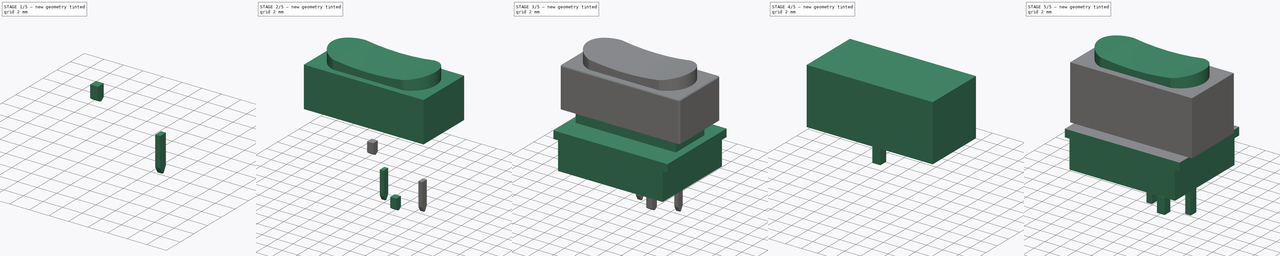
[diagram: build sequence overview — one tinted view per stage of 5, left to right]
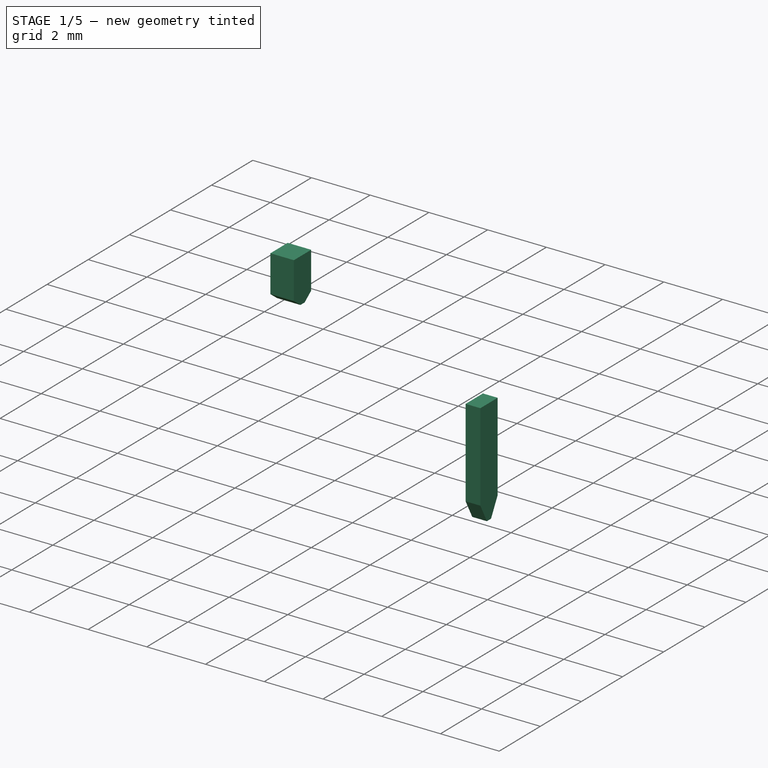
[diagram: stage 1 of 5 — iso view after this stage's code; geometry added in this stage tinted green]
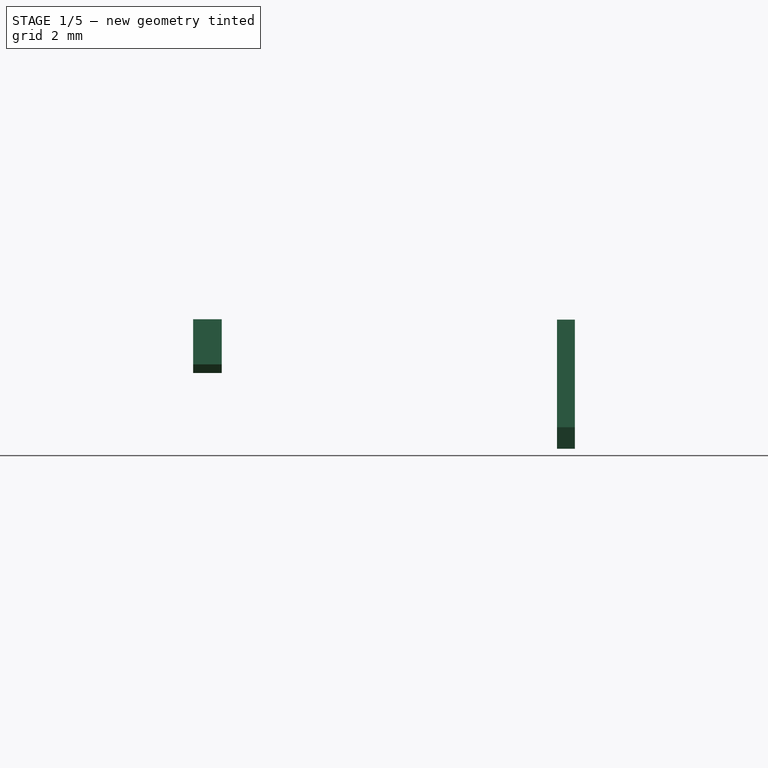
[diagram: stage 1 of 5 — front view after this stage's code; geometry added in this stage tinted green]
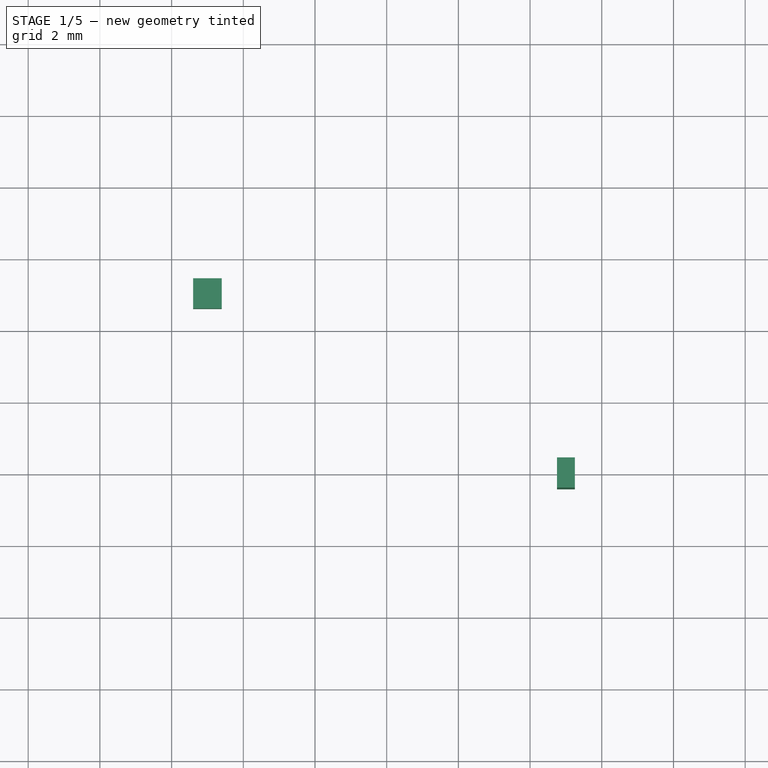
[diagram: stage 1 of 5 — top view after this stage's code; geometry added in this stage tinted green]
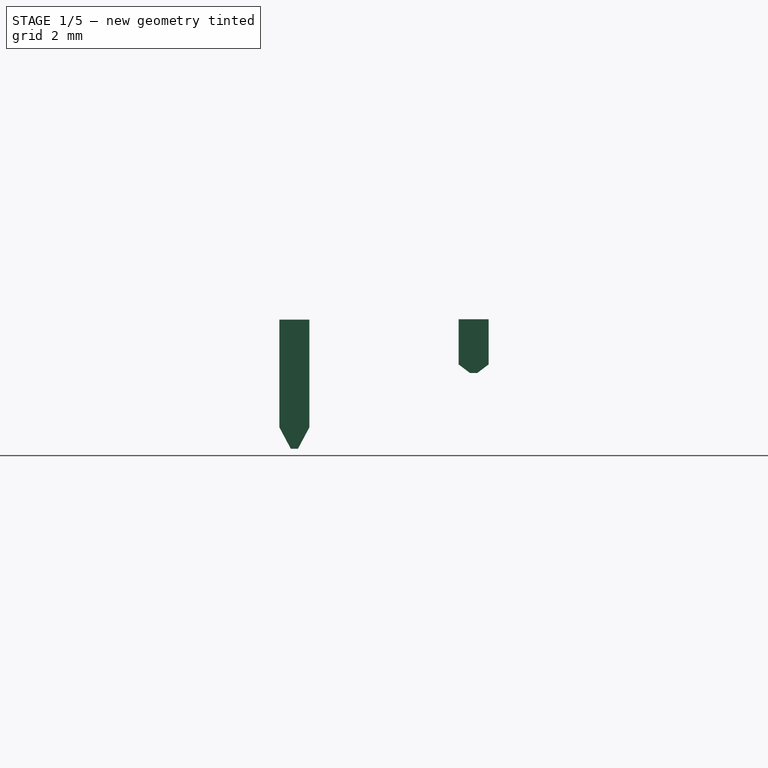
[diagram: stage 1 of 5 — right view after this stage's code; geometry added in this stage tinted green]
FCSTD DOCUMENT  (FreeCAD 0.17R13247 (Git))
Label: marquardt_6450
License: All rights reserved
LicenseURL: http://en.wikipedia.org/wiki/All_rights_reserved
objects: Sketcher::SketchObject×10, Part::Extrusion×7, Part::FeaturePython×4, Part::Compound×4, PartDesign::Pad×2, Part::MultiFuse×2, PartDesign::Pocket×1, Part::Fillet×1, Spreadsheet::Sheet×1
note: 34 computed .brp shape members not serialized (recipe doc carries the construction recipe); baked Part::Feature solids carry a one-line shape summary decoded from their .brp

FEATURE [Sketcher::SketchObject] Sketch007
  MapMode = 5
  Placement = pos=(0,0,0) rot=(0.57735,0.57735,0.57735;2.0944rad)
  sketch-geometry (6):
    g0: LineSegment StartX=-0.42 StartY=0 StartZ=0 EndX=0.42 EndY=0 EndZ=0
    g1: LineSegment StartX=0.42 StartY=0 StartZ=0 EndX=0.42 EndY=-3 EndZ=0
    g2: LineSegment StartX=0.42 StartY=-3 StartZ=0 EndX=0.1 EndY=-3.6 EndZ=0
    g3: LineSegment StartX=0.1 StartY=-3.6 StartZ=0 EndX=-0.1 EndY=-3.6 EndZ=0
    g4: LineSegment StartX=-0.1 StartY=-3.6 StartZ=0 EndX=-0.42 EndY=-3 EndZ=0
    g5: LineSegment StartX=-0.42 StartY=-3 StartZ=0 EndX=-0.42 EndY=0 EndZ=0
  constraints (18):
    c: PointOnObject(g0,g-1)
    c: PointOnObject(g0,g-1)
    c: Coincident(g0,g1)
    c: Vertical(g1)
    c: Coincident(g1,g2)
    c: Coincident(g2,g3)
    c: Horizontal(g3)
    c: Coincident(g3,g4)
    c: Coincident(g4,g5)
    c: Coincident(g5,g0)
    c: Vertical(g5)
    c: Symmetric(g0,g0,g-2)
    c: Symmetric(g2,g3,g-2)
    c: Equal(g1,g5)
    c: DistanceX(g3,g3) = 0.2
    c: DistanceX(g0,g0) = 0.84
    c: DistanceY(g1,g0) = 3
    c: DistanceY(g2,g1) = 0.6
FEATURE [Part::Extrusion] Extrude003  label="pin1"
  Base = -> Sketch007
  Dir = (0.5,0,0)
  DirMode = 0
  FaceMakerClass = Part::FaceMakerExtrusion
  LengthFwd = 0
  LengthRev = 0
  Placement = pos=(-0.25,0,-6.35) rot=(0,0,1;0rad)
  Solid = true
  Symmetric = false
FEATURE [Part::FeaturePython] Clone  label="Clone of pin1"  # Draft clone (typed FeaturePython)
  Objects = -> [Extrude003]
  Placement = pos=(4.75,0,-6.35) rot=(0,0,1;0rad)
  Scale = (1,1,1)
FEATURE [Sketcher::SketchObject] Sketch008  label="littlePin"
  MapMode = 5
  Placement = pos=(5,-5,-6.33908) rot=(0.57735,0.57735,0.57735;2.0944rad)
  sketch-geometry (6):
    g0: LineSegment StartX=-0.42 StartY=0 StartZ=0 EndX=0.42 EndY=0 EndZ=0
    g1: LineSegment StartX=0.42 StartY=0 StartZ=0 EndX=0.42 EndY=-1.25815 EndZ=0
    g2: LineSegment StartX=0.42 StartY=-1.25815 StartZ=0 EndX=0.1 EndY=-1.5 EndZ=0
    g3: LineSegment StartX=0.1 StartY=-1.5 StartZ=0 EndX=-0.1 EndY=-1.5 EndZ=0
    g4: LineSegment StartX=-0.1 StartY=-1.5 StartZ=0 EndX=-0.42 EndY=-1.25815 EndZ=0
    g5: LineSegment StartX=-0.42 StartY=-1.25815 StartZ=0 EndX=-0.42 EndY=0 EndZ=0
  constraints (17):
    c: PointOnObject(g0,g-1)
    c: PointOnObject(g0,g-1)
    c: Coincident(g0,g1)
    c: Vertical(g1)
    c: Coincident(g1,g2)
    c: Coincident(g2,g3)
    c: Horizontal(g3)
    c: Coincident(g3,g4)
    c: Coincident(g4,g5)
    c: Coincident(g5,g0)
    c: Vertical(g5)
    c: Symmetric(g0,g0,g-2)
    c: Symmetric(g2,g3,g-2)
    c: Equal(g1,g5)
    c: DistanceX(g3,g3) = 0.2
    c: DistanceX(g0,g0) = 0.84
    c: DistanceY(g3,g0) = 1.5
FEATURE [PartDesign::Pad] Pad002  label="PlasticPin"
  Length = 0.8
  Length2 = 100
  Midplane = true
  Placement = pos=(5,-5,-6.33908) rot=(0.57735,0.57735,0.57735;2.0944rad)
  Profile = -> Sketch008
  Type = 0
FEATURE [Part::FeaturePython] Clone001  label="Clone of PlasticPin"  # Draft clone (typed FeaturePython)
  Objects = -> [Pad002]
  Placement = pos=(-5,5,-6.33908) rot=(0.57735,0.57735,0.57735;2.0944rad)
  Scale = (1,1,1)
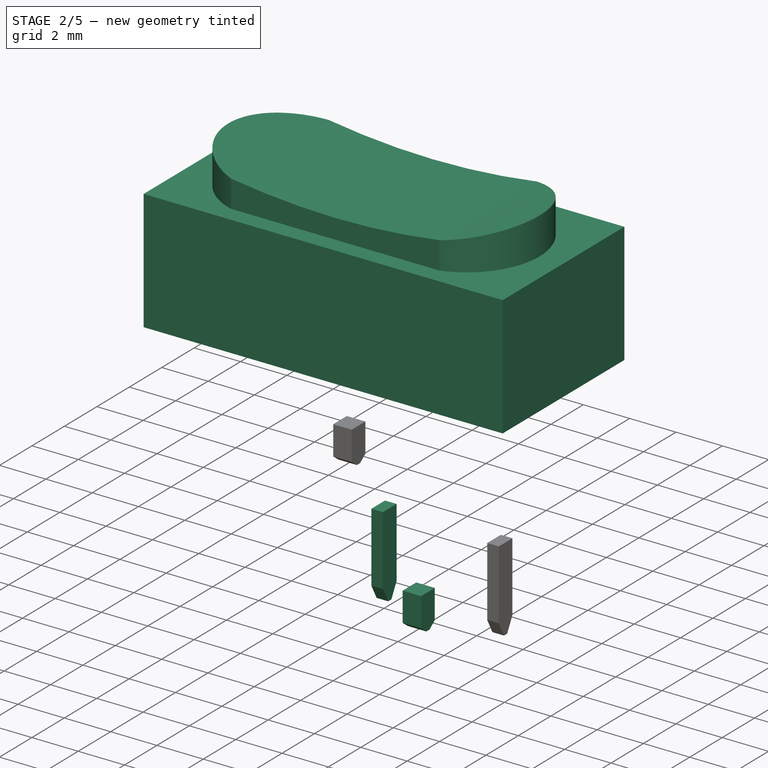
[diagram: stage 2 of 5 — iso view after this stage's code; geometry added in this stage tinted green]
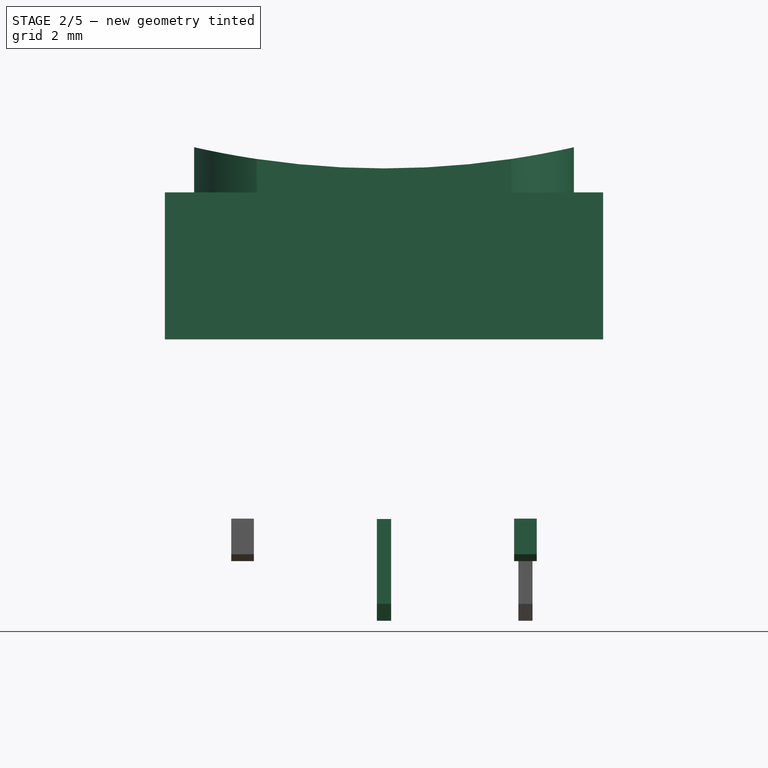
[diagram: stage 2 of 5 — front view after this stage's code; geometry added in this stage tinted green]
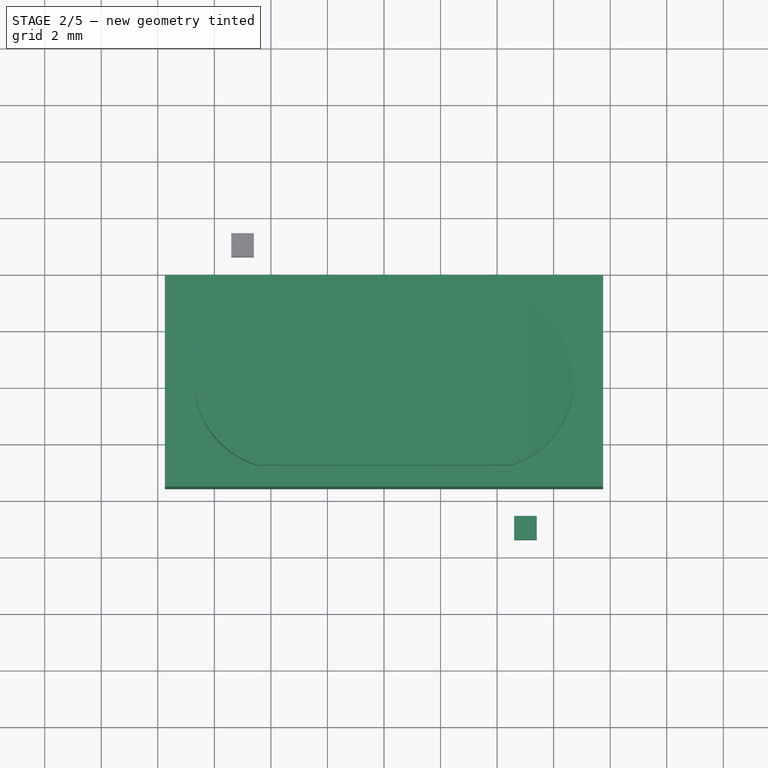
[diagram: stage 2 of 5 — top view after this stage's code; geometry added in this stage tinted green]
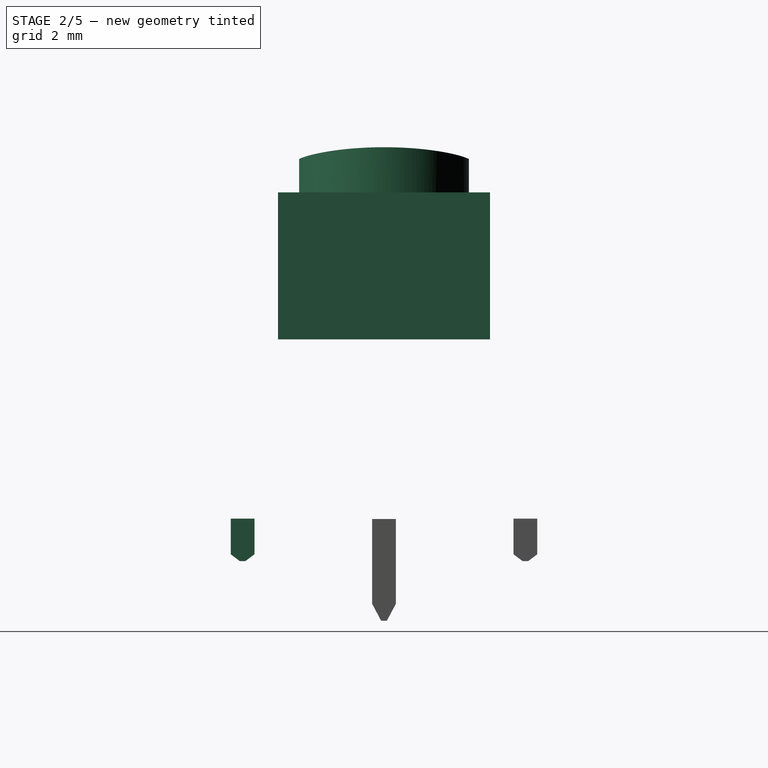
[diagram: stage 2 of 5 — right view after this stage's code; geometry added in this stage tinted green]
FEATURE [Sketcher::SketchObject] Sketch
  MapMode = 5
  sketch-geometry (4):
    g0: LineSegment StartX=-7.75 StartY=3.75 StartZ=0 EndX=7.75 EndY=3.75 EndZ=0
    g1: LineSegment StartX=7.75 StartY=3.75 StartZ=0 EndX=7.75 EndY=-3.75 EndZ=0
    g2: LineSegment StartX=7.75 StartY=-3.75 StartZ=0 EndX=-7.75 EndY=-3.75 EndZ=0
    g3: LineSegment StartX=-7.75 StartY=-3.75 StartZ=0 EndX=-7.75 EndY=3.75 EndZ=0
  constraints (12):
    c: Coincident(g0,g1)
    c: Coincident(g1,g2)
    c: Coincident(g2,g3)
    c: Coincident(g3,g0)
    c: Horizontal(g0)
    c: Horizontal(g2)
    c: Vertical(g1)
    c: Vertical(g3)
    c: DistanceY(g3,g3) = 7.5
    c: DistanceX(g0,g0) = 15.5
    c: Symmetric(g0,g0,g-2)
    c: Symmetric(g1,g0,g-1)
FEATURE [PartDesign::Pad] Pad
  Length = 5.2
  Length2 = 100
  Profile = -> Sketch
  Type = 0
FEATURE [Sketcher::SketchObject] Sketch003
  MapMode = 5
  Placement = pos=(0,-3,0) rot=(1,0,0;1.5708rad)
  sketch-geometry (4):
    g0: ArcOfCircle CenterX=0 CenterY=36.5027 CenterZ=0 NormalX=0 NormalY=0 NormalZ=1 AngleXU=0 Radius=30.4549 StartAngle=4.48968 EndAngle=4.9351
    g1: LineSegment StartX=4.5 StartY=6.8 StartZ=0 EndX=6.7267 EndY=6.8 EndZ=0
    g2: LineSegment StartX=-4.5 StartY=6.8 StartZ=0 EndX=-6.7267 EndY=6.8 EndZ=0
    g3: LineSegment StartX=-4.5 StartY=6.8 StartZ=0 EndX=4.5 EndY=6.8 EndZ=0
  constraints (8):
    c: PointOnObject(g0,g-2)
    c: Symmetric(g0,g0,g-2)
    c: Horizontal(g1)
    c: Horizontal(g2)
    c: Coincident(g0,g2)
    c: Coincident(g1,g0)
    c: Coincident(g3,g2)
    c: Coincident(g3,g1)
FEATURE [PartDesign::Pocket] Pocket
  Length = 5
  Length2 = 100
  Profile = -> Sketch003
  Type = 1
FEATURE [Part::MultiFuse] Fusion  label="Cap_"
  Shapes = -> [Pocket,Pad]
FEATURE [Part::Compound] Compound  label="Pins"
  Links = -> [Clone,Extrude003,Pad002,Clone001]
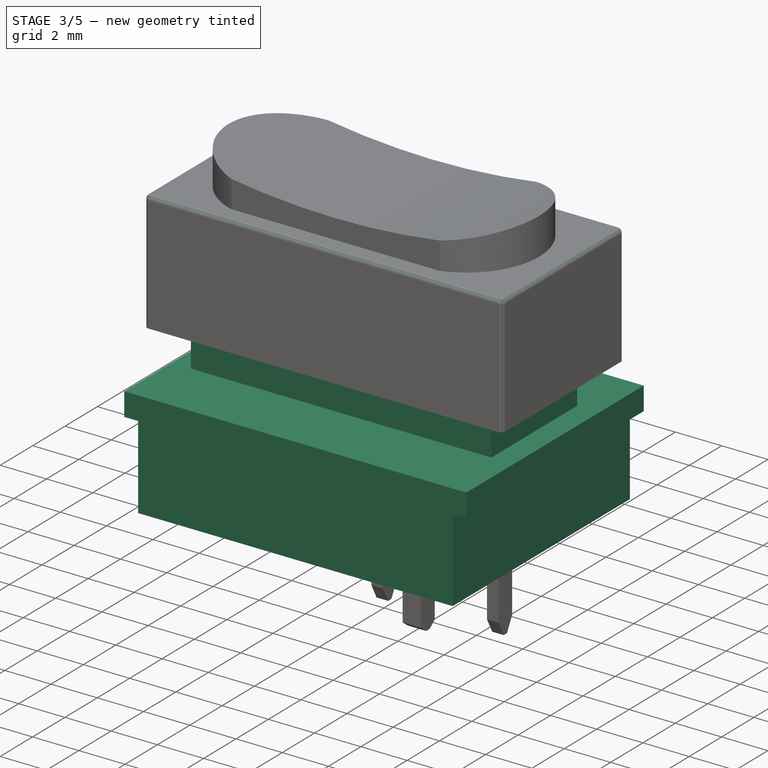
[diagram: stage 3 of 5 — iso view after this stage's code; geometry added in this stage tinted green]
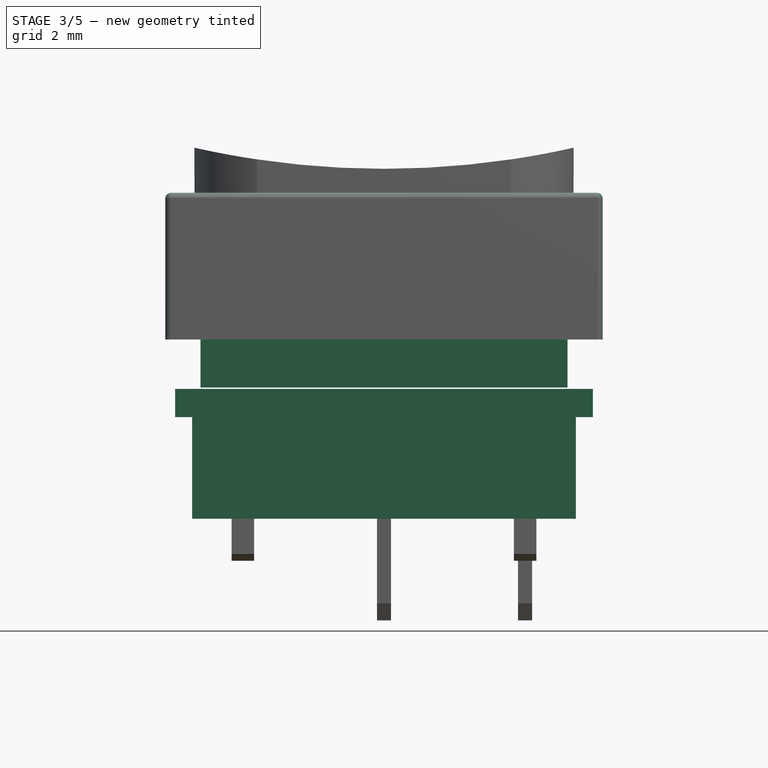
[diagram: stage 3 of 5 — front view after this stage's code; geometry added in this stage tinted green]
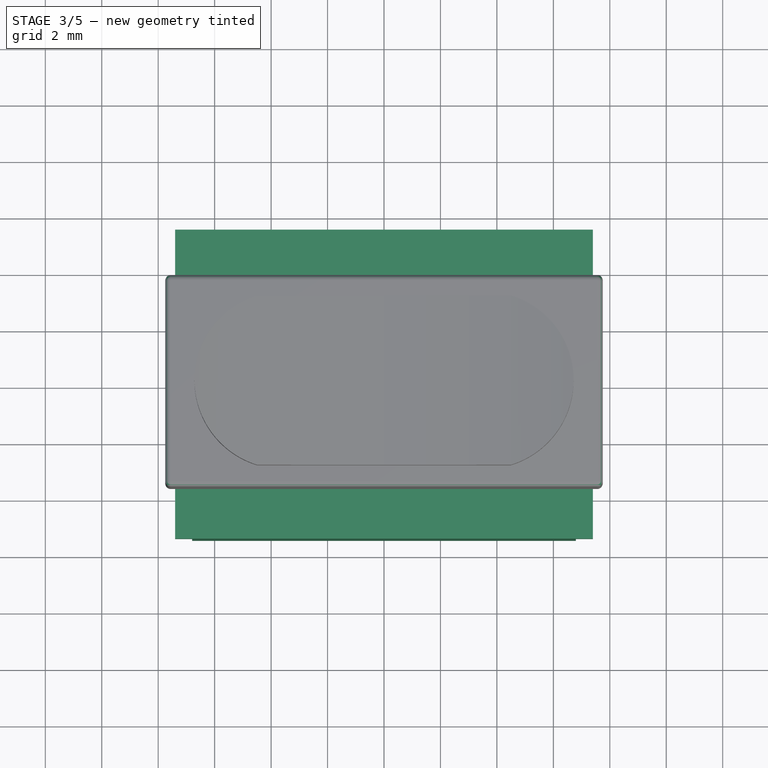
[diagram: stage 3 of 5 — top view after this stage's code; geometry added in this stage tinted green]
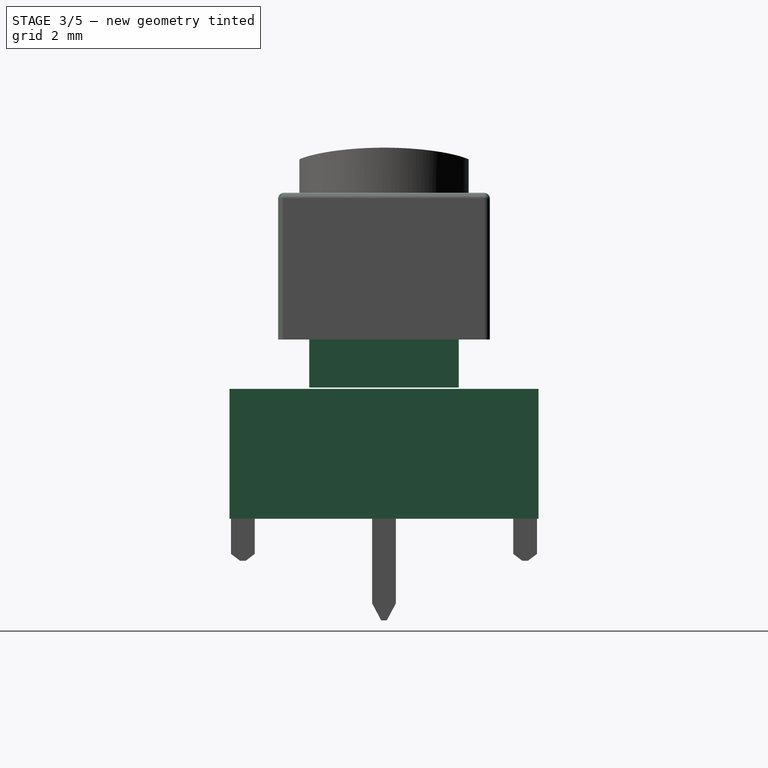
[diagram: stage 3 of 5 — right view after this stage's code; geometry added in this stage tinted green]
FEATURE [Sketcher::SketchObject] Sketch004
  MapMode = 5
  sketch-geometry (4):
    g0: LineSegment StartX=-6.8 StartY=5.475 StartZ=0 EndX=6.8 EndY=5.475 EndZ=0
    g1: LineSegment StartX=6.8 StartY=5.475 StartZ=0 EndX=6.8 EndY=-5.475 EndZ=0
    g2: LineSegment StartX=6.8 StartY=-5.475 StartZ=0 EndX=-6.8 EndY=-5.475 EndZ=0
    g3: LineSegment StartX=-6.8 StartY=-5.475 StartZ=0 EndX=-6.8 EndY=5.475 EndZ=0
  constraints (12):
    c: Coincident(g0,g1)
    c: Coincident(g1,g2)
    c: Coincident(g2,g3)
    c: Coincident(g3,g0)
    c: Horizontal(g0)
    c: Horizontal(g2)
    c: Vertical(g1)
    c: Vertical(g3)
    c: DistanceX(g0,g0) = 13.6
    c: DistanceY(g1,g1) = 10.95
    c: Symmetric(g1,g0,g-1)
    c: Symmetric(g0,g0,g-2)
FEATURE [Part::Extrusion] Extrude
  Base = -> Sketch004
  Dir = (0,0,-3.6)
  DirMode = 0
  FaceMakerClass = Part::FaceMakerExtrusion
  LengthFwd = 0
  LengthRev = 0
  Placement = pos=(0,0,-2.75) rot=(0,0,1;0rad)
  Solid = true
  Symmetric = false
FEATURE [Sketcher::SketchObject] Sketch005
  MapMode = 5
  sketch-geometry (4):
    g0: LineSegment StartX=-7.4 StartY=5.475 StartZ=0 EndX=7.4 EndY=5.475 EndZ=0
    g1: LineSegment StartX=7.4 StartY=5.475 StartZ=0 EndX=7.4 EndY=-5.475 EndZ=0
    g2: LineSegment StartX=7.4 StartY=-5.475 StartZ=0 EndX=-7.4 EndY=-5.475 EndZ=0
    g3: LineSegment StartX=-7.4 StartY=-5.475 StartZ=0 EndX=-7.4 EndY=5.475 EndZ=0
  constraints (12):
    c: Coincident(g0,g1)
    c: Coincident(g1,g2)
    c: Coincident(g2,g3)
    c: Coincident(g3,g0)
    c: Horizontal(g0)
    c: Horizontal(g2)
    c: Vertical(g1)
    c: Vertical(g3)
    c: DistanceX(g0,g0) = 14.8
    c: DistanceY(g1,g1) = 10.95
    c: Symmetric(g1,g0,g-1)
    c: Symmetric(g0,g0,g-2)
FEATURE [Part::Extrusion] Extrude001
  Base = -> Sketch005
  Dir = (0,0,-1)
  DirMode = 0
  FaceMakerClass = Part::FaceMakerExtrusion
  LengthFwd = 0
  LengthRev = 0
  Placement = pos=(0,0,-1.75) rot=(0,0,1;0rad)
  Solid = true
  Symmetric = false
FEATURE [Part::MultiFuse] Fusion001  label="Base"
  Shapes = -> [Extrude001,Extrude]
FEATURE [Sketcher::SketchObject] Sketch006
  MapMode = 5
  Placement = pos=(0,0,0) rot=(1,0,0;3.14159rad)
  Support = -> [Fusion]
  sketch-geometry (4):
    g0: LineSegment StartX=-6.5 StartY=2.65 StartZ=0 EndX=6.5 EndY=2.65 EndZ=0
    g1: LineSegment StartX=6.5 StartY=2.65 StartZ=0 EndX=6.5 EndY=-2.65 EndZ=0
    g2: LineSegment StartX=6.5 StartY=-2.65 StartZ=0 EndX=-6.5 EndY=-2.65 EndZ=0
    g3: LineSegment StartX=-6.5 StartY=-2.65 StartZ=0 EndX=-6.5 EndY=2.65 EndZ=0
  constraints (12):
    c: Coincident(g0,g1)
    c: Coincident(g1,g2)
    c: Coincident(g2,g3)
    c: Coincident(g3,g0)
    c: Horizontal(g0)
    c: Horizontal(g2)
    c: Vertical(g1)
    c: Vertical(g3)
    c: Symmetric(g1,g0,g-1)
    c: Symmetric(g0,g0,g-2)
    c: DistanceX(g0,g0) = 13
    c: DistanceY(g1,g1) = 5.3
FEATURE [Part::Extrusion] Extrude002  label="Neck"
  Base = -> Sketch006
  Dir = (0,0,-1.7)
  DirMode = 0
  FaceMakerClass = Part::FaceMakerExtrusion
  LengthFwd = 0
  LengthRev = 0
  Solid = true
  Symmetric = false
FEATURE [Part::Fillet] Fillet  label="Cap"
  Base = -> Fusion
  Edges = 8 edges r=0.2: [Edge15,Edge16,Edge17,Edge18,Edge19,Edge21,Edge22,Edge25]
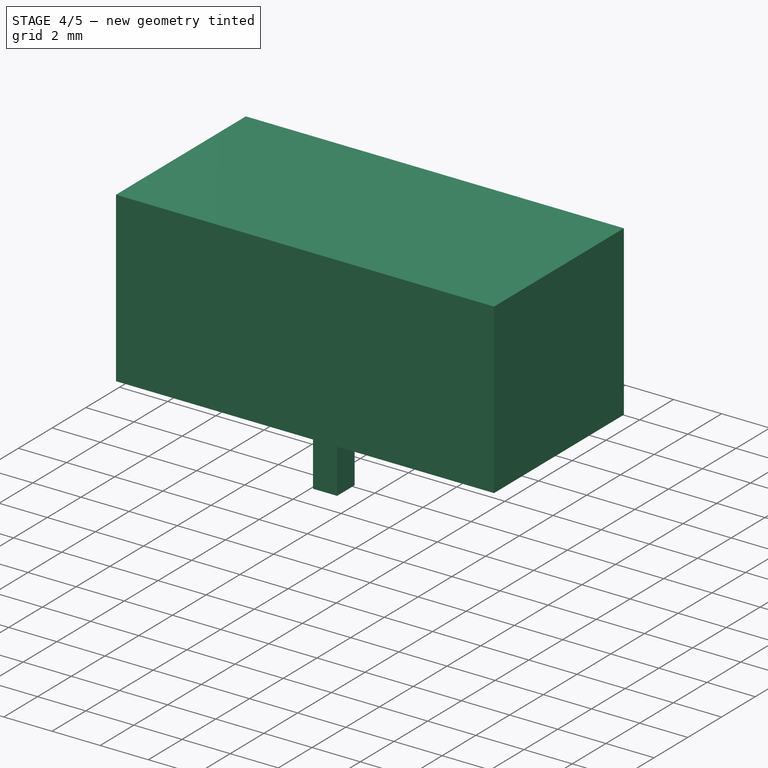
[diagram: stage 4 of 5 — iso view after this stage's code; geometry added in this stage tinted green]
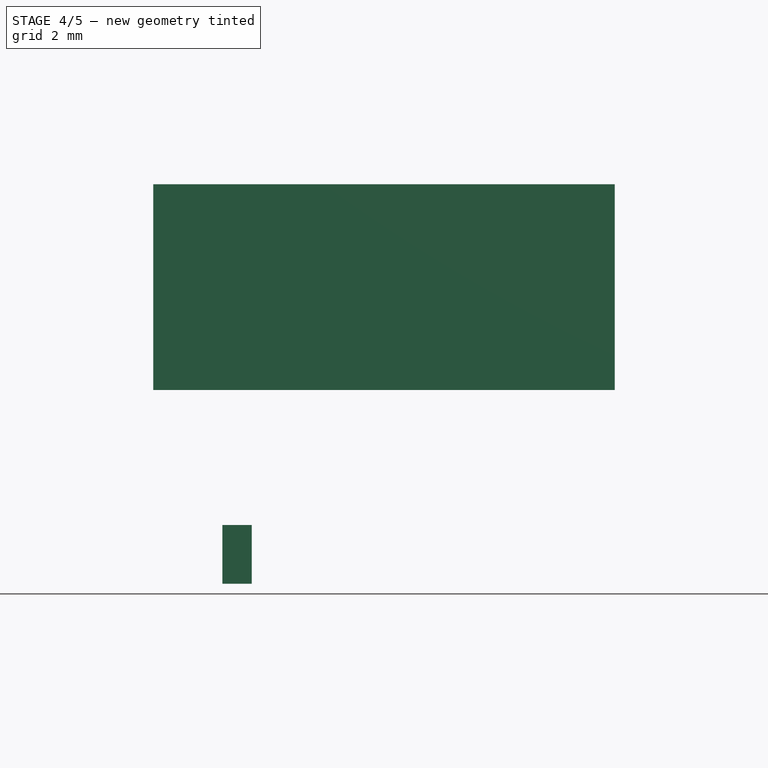
[diagram: stage 4 of 5 — front view after this stage's code; geometry added in this stage tinted green]
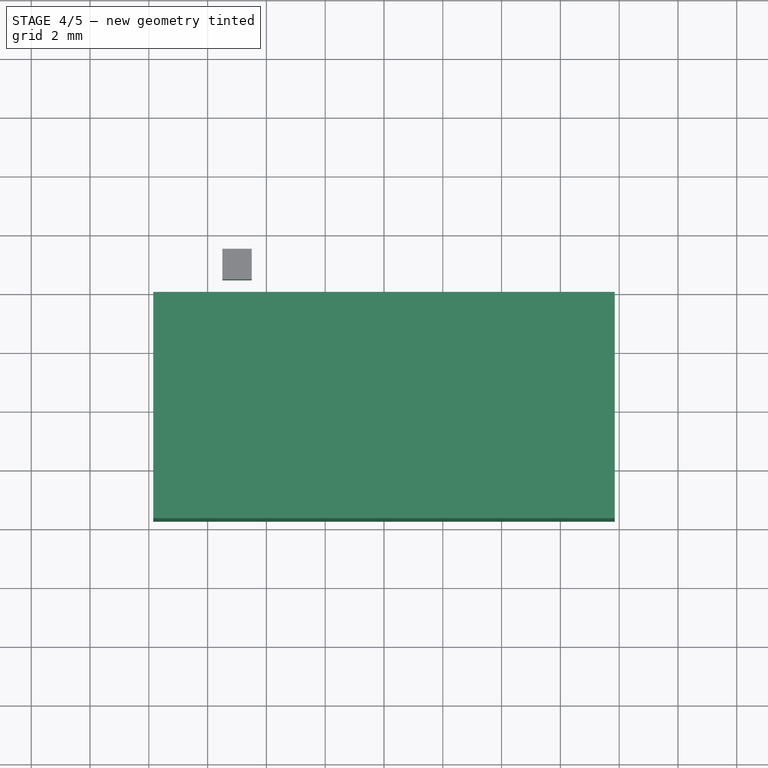
[diagram: stage 4 of 5 — top view after this stage's code; geometry added in this stage tinted green]
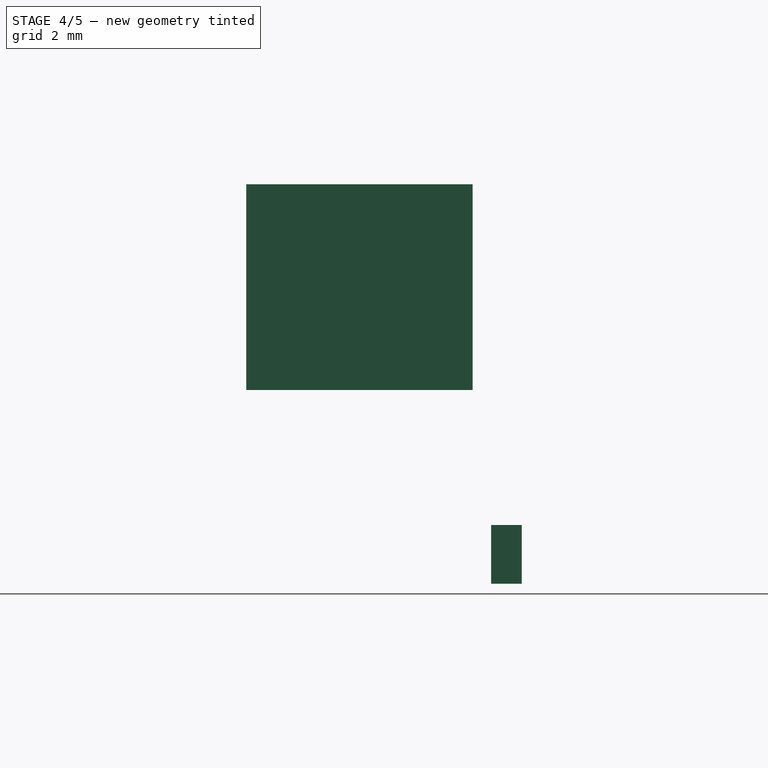
[diagram: stage 4 of 5 — right view after this stage's code; geometry added in this stage tinted green]
FEATURE [Part::Compound] Compound001  label="_marquardt_6450"
  Links = -> [Compound,Fusion001,Extrude002,Fillet]
FEATURE [Sketcher::SketchObject] Sketch010
  ExternalGeometry = -> [Compound]
  MapMode = 5
  Placement = pos=(0,0,-6.33908) rot=(0,0,1;0rad)
  Support = -> [Compound]
  expr: Constraints[11] = Spreadsheet.PcbTolerance
  expr: Constraints[10] = Spreadsheet.PcbTolerance
  expr: Constraints[9] = Spreadsheet.PcbTolerance
  expr: Constraints[8] = Spreadsheet.PcbTolerance
  sketch-geometry (4):
    g0: LineSegment StartX=4.5 StartY=-4.48 StartZ=0 EndX=5.5 EndY=-4.48 EndZ=0
    g1: LineSegment StartX=5.5 StartY=-4.48 StartZ=0 EndX=5.5 EndY=-5.52 EndZ=0
    g2: LineSegment StartX=5.5 StartY=-5.52 StartZ=0 EndX=4.5 EndY=-5.52 EndZ=0
    g3: LineSegment StartX=4.5 StartY=-5.52 StartZ=0 EndX=4.5 EndY=-4.48 EndZ=0
  constraints (12):
    c: Coincident(g0,g1)
    c: Coincident(g1,g2)
    c: Coincident(g2,g3)
    c: Coincident(g3,g0)
    c: Horizontal(g0)
    c: Horizontal(g2)
    c: Vertical(g1)
    c: Vertical(g3)
    c: DistanceX(g-3,g1) = 0.1
    c: DistanceX(g0,g-4) = 0.1
    c: DistanceY(g-4,g0) = 0.1
    c: DistanceY(g2,g-3) = 0.1
FEATURE [Part::Extrusion] Extrude005  label="PlasticPinPcbHole"
  Base = -> Sketch010
  Dir = (0,0,-2)
  DirMode = 0
  FaceMakerClass = Part::FaceMakerExtrusion
  LengthFwd = 0
  LengthRev = 0
  Solid = true
  Symmetric = false
FEATURE [Part::FeaturePython] Clone003  label="Clone of PlasticPinPcbHole"  # Draft clone (typed FeaturePython)
  Objects = -> [Extrude005]
  Placement = pos=(-10,10,0) rot=(0,0,1;0rad)
  Scale = (1,1,1)
FEATURE [Sketcher::SketchObject] Sketch011
  ExternalGeometry = -> [Compound001]
  MapMode = 5
  Placement = pos=(0,0,-1.75) rot=(0,0,1;0rad)
  Support = -> [Compound001]
  expr: Constraints[11] = Spreadsheet.FPTolerance
  expr: Constraints[10] = Spreadsheet.FPTolerance
  expr: Constraints[9] = Spreadsheet.FPTolerance
  expr: Constraints[8] = Spreadsheet.FPTolerance
  sketch-geometry (4):
    g0: LineSegment StartX=-7.85 StartY=3.85 StartZ=0 EndX=7.85 EndY=3.85 EndZ=0
    g1: LineSegment StartX=7.85 StartY=3.85 StartZ=0 EndX=7.85 EndY=-3.85 EndZ=0
    g2: LineSegment StartX=7.85 StartY=-3.85 StartZ=0 EndX=-7.85 EndY=-3.85 EndZ=0
    g3: LineSegment StartX=-7.85 StartY=-3.85 StartZ=0 EndX=-7.85 EndY=3.85 EndZ=0
  constraints (12):
    c: Coincident(g0,g1)
    c: Coincident(g1,g2)
    c: Coincident(g2,g3)
    c: Coincident(g3,g0)
    c: Horizontal(g0)
    c: Horizontal(g2)
    c: Vertical(g1)
    c: Vertical(g3)
    c: DistanceX(g0,g-7) = 0.1
    c: DistanceY(g-7,g0) = 0.1
    c: DistanceY(g1,g-9) = 0.1
    c: DistanceX(g-9,g1) = 0.1
FEATURE [Part::Extrusion] Extrude006  label="Marquardt6450_FPHole"
  Base = -> Sketch011
  Dir = (0,0,7)
  DirMode = 0
  FaceMakerClass = Part::FaceMakerExtrusion
  LengthFwd = 0
  LengthRev = 0
  Solid = true
  Symmetric = false
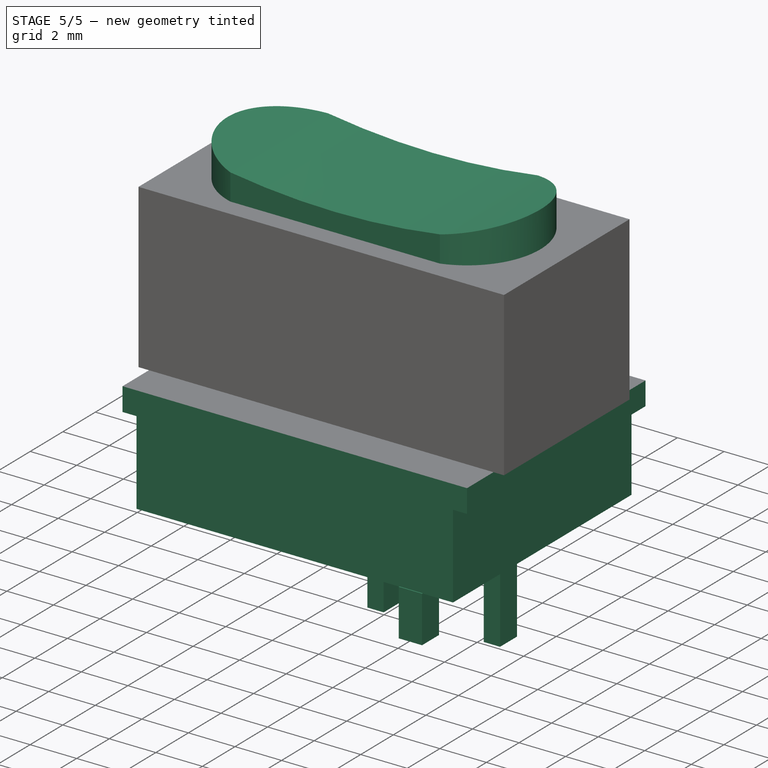
[diagram: stage 5 of 5 — iso view after this stage's code; geometry added in this stage tinted green]
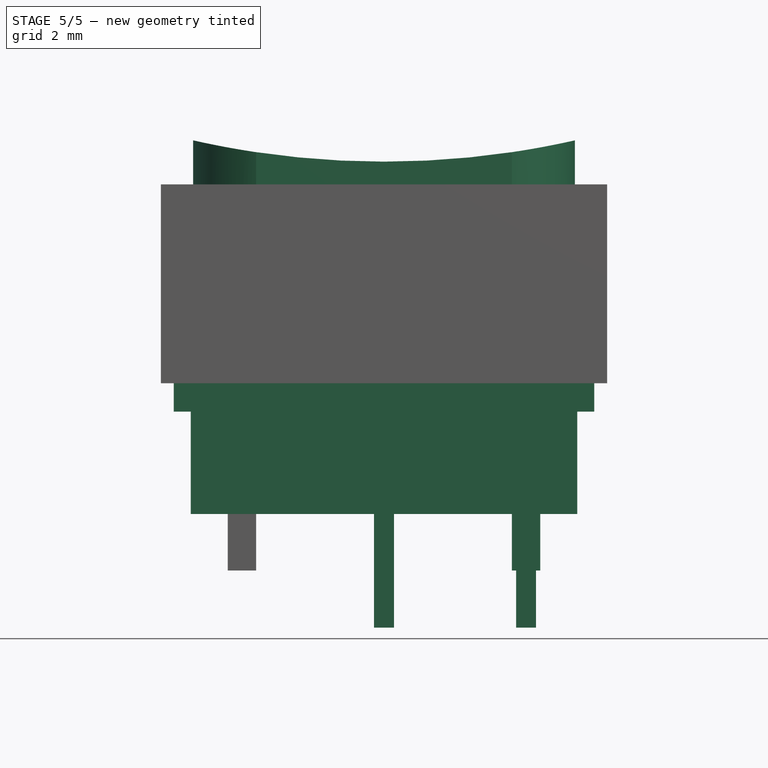
[diagram: stage 5 of 5 — front view after this stage's code; geometry added in this stage tinted green]
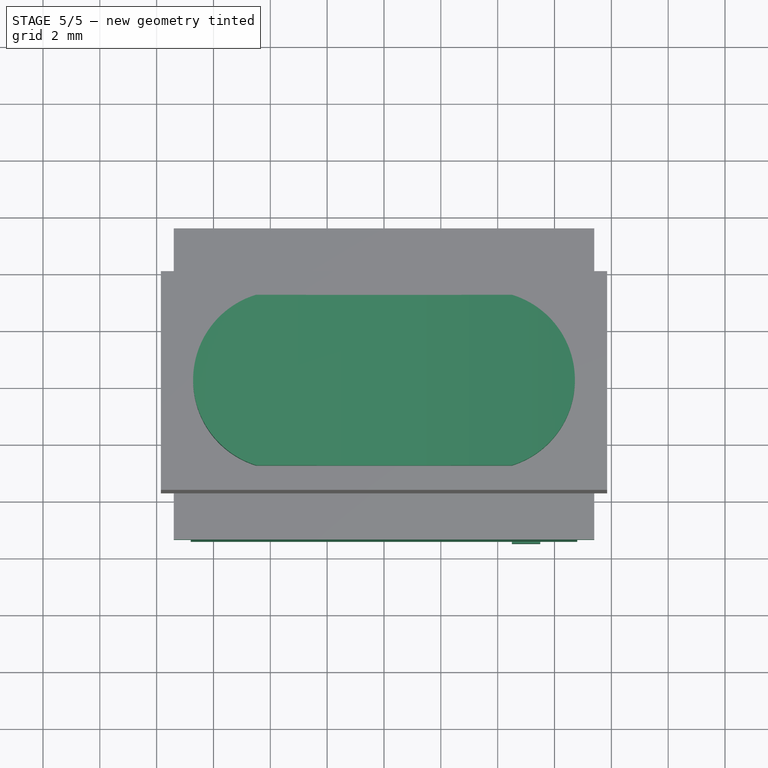
[diagram: stage 5 of 5 — top view after this stage's code; geometry added in this stage tinted green]
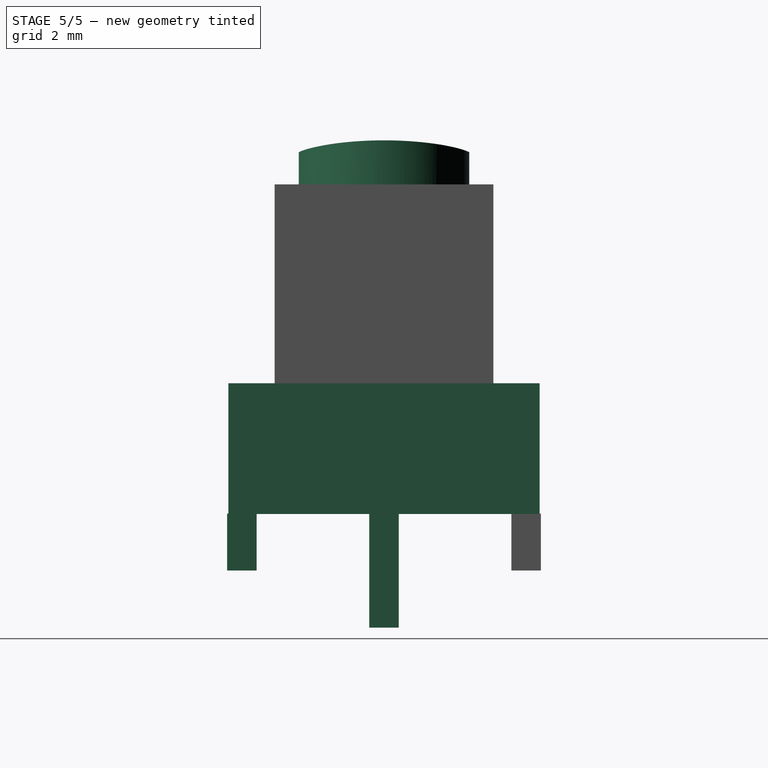
[diagram: stage 5 of 5 — right view after this stage's code; geometry added in this stage tinted green]
FEATURE [Sketcher::SketchObject] Sketch009
  ExternalGeometry = -> [Compound]
  MapMode = 5
  Placement = pos=(0,0,-6.35) rot=(0,0,1;0rad)
  Support = -> [Compound]
  expr: Constraints[11] = Spreadsheet.PcbTolerance
  expr: Constraints[10] = Spreadsheet.PcbTolerance
  expr: Constraints[9] = Spreadsheet.PcbTolerance
  expr: Constraints[8] = Spreadsheet.PcbTolerance
  sketch-geometry (4):
    g0: LineSegment StartX=-0.35 StartY=0.52 StartZ=0 EndX=0.35 EndY=0.52 EndZ=0
    g1: LineSegment StartX=0.35 StartY=0.52 StartZ=0 EndX=0.35 EndY=-0.52 EndZ=0
    g2: LineSegment StartX=0.35 StartY=-0.52 StartZ=0 EndX=-0.35 EndY=-0.52 EndZ=0
    g3: LineSegment StartX=-0.35 StartY=-0.52 StartZ=0 EndX=-0.35 EndY=0.52 EndZ=0
  constraints (12):
    c: Coincident(g0,g1)
    c: Coincident(g1,g2)
    c: Coincident(g2,g3)
    c: Coincident(g3,g0)
    c: Horizontal(g0)
    c: Horizontal(g2)
    c: Vertical(g1)
    c: Vertical(g3)
    c: DistanceX(g-4,g0) = 0.1
    c: DistanceY(g-4,g0) = 0.1
    c: DistanceY(g2,g-3) = 0.1
    c: DistanceX(g2,g-3) = 0.1
FEATURE [Spreadsheet::Sheet] Spreadsheet
  cells = B3=PcbTolerance; C3(PcbTolerance)=0.10000000000000001; B4=FPTolerance; C4(FPTolerance)=0.10000000000000001
FEATURE [Part::Extrusion] Extrude004  label="PinPcbHole"
  Base = -> Sketch009
  Dir = (0,0,-4)
  DirMode = 0
  FaceMakerClass = Part::FaceMakerExtrusion
  LengthFwd = 0
  LengthRev = 0
  Solid = true
  Symmetric = false
FEATURE [Part::FeaturePython] Clone002  label="Clone of PinPcbHole"  # Draft clone (typed FeaturePython)
  Objects = -> [Extrude004]
  Placement = pos=(5,0,0) rot=(0,0,1;0rad)
  Scale = (1,1,1)
FEATURE [Part::Compound] Compound002  label="Marquardt5450_PcbHoles"
  Links = -> [Extrude004,Clone002,Extrude005,Clone003]
FEATURE [Part::Compound] Compound003  label="Marquardt_6450"
  Links = -> [Compound001,Compound002,Extrude006,Spreadsheet]
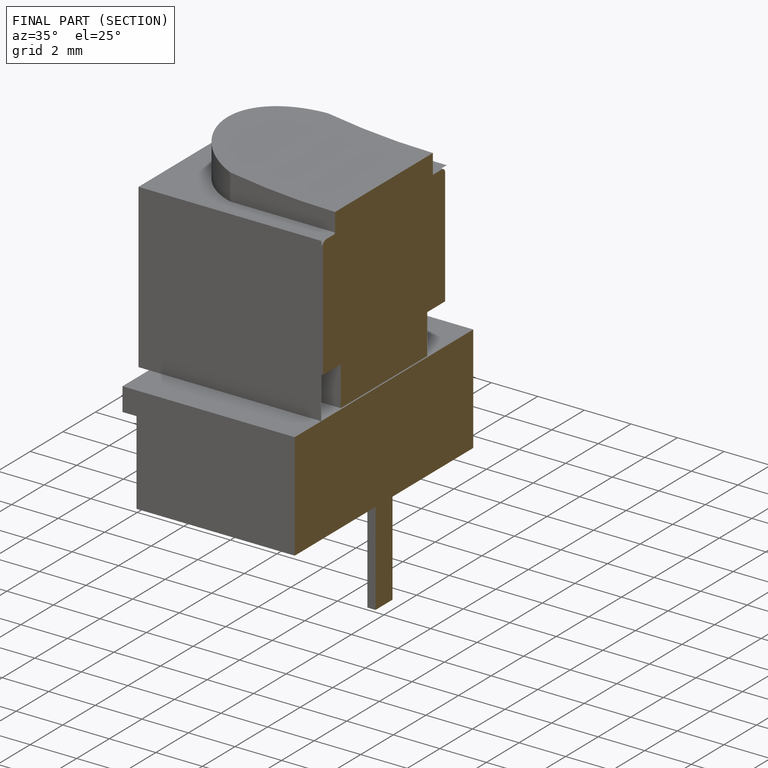
[diagram: finished part — half-section view (interior)]
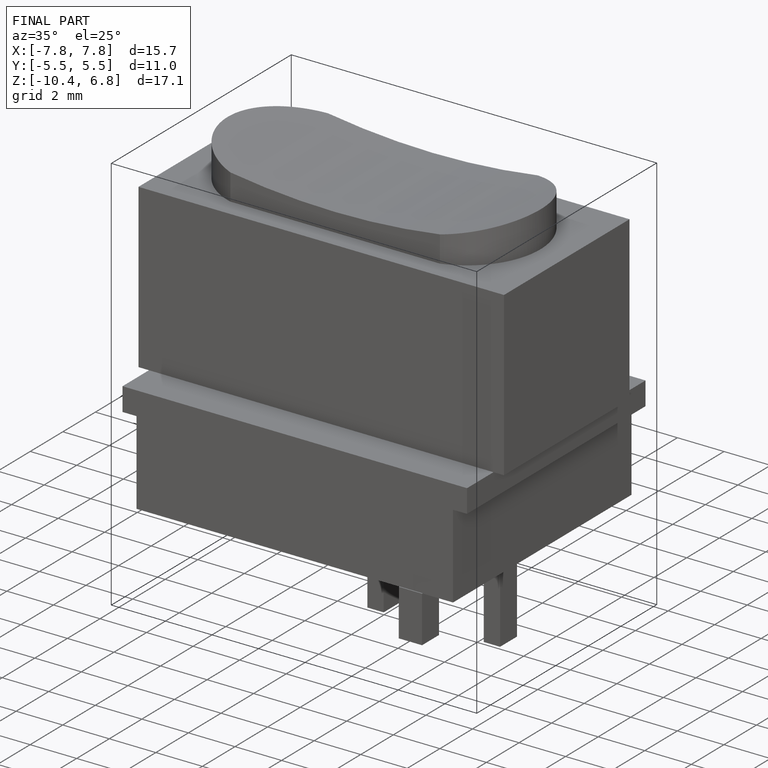
[diagram: finished part — iso view with bounding-box wireframe]
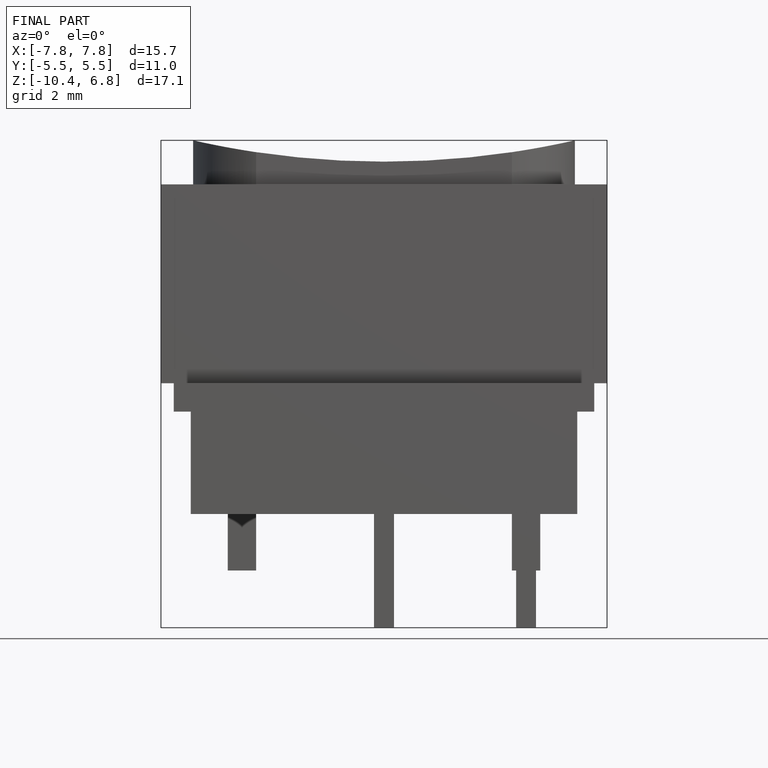
[diagram: finished part — front view with bounding-box wireframe]
